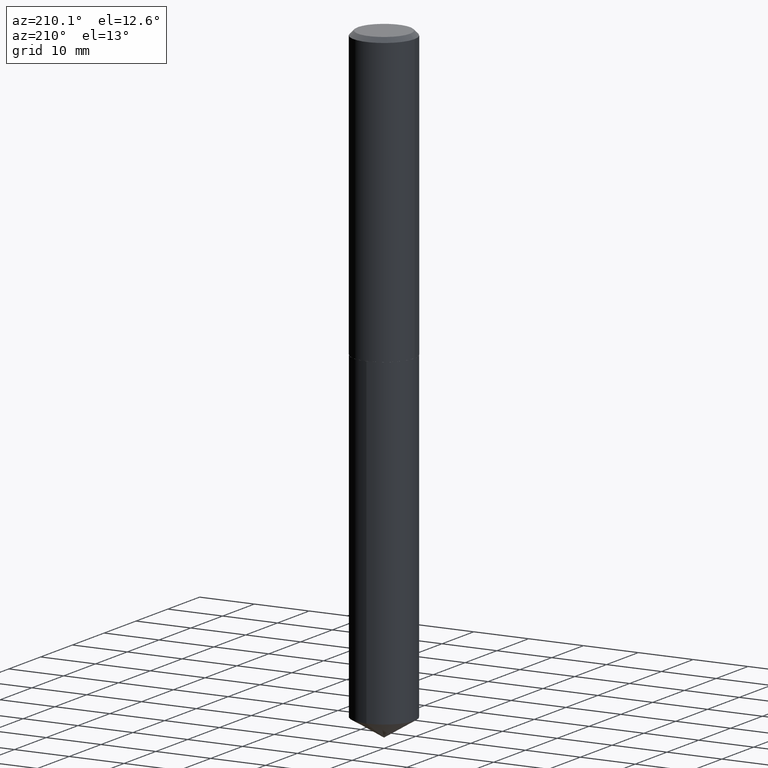
[diagram: clean part render]
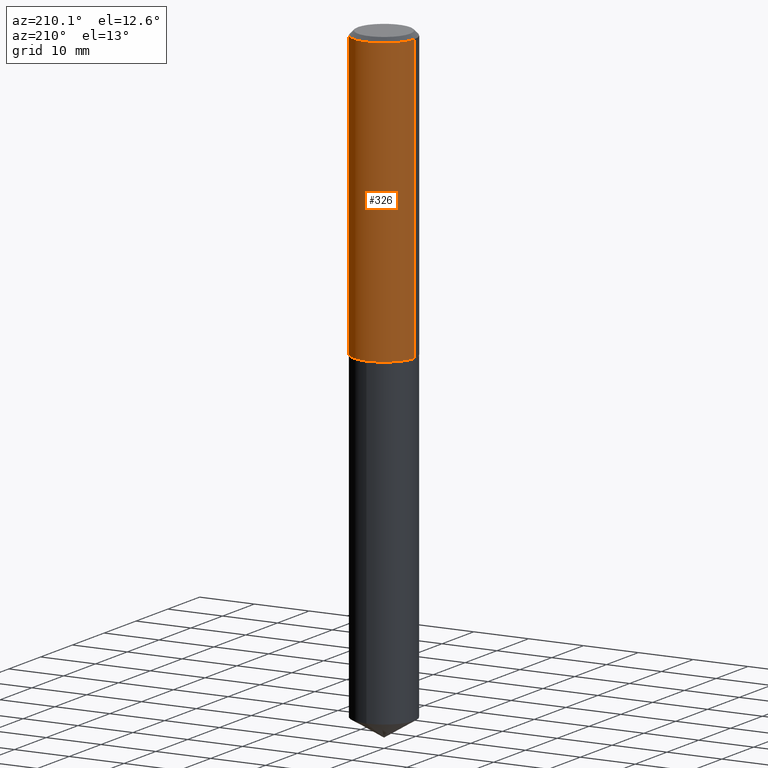
[diagram: same view with one face highlighted and labeled with its STEP entity id]
A machine part, auxiliary view. The second image highlights one B-rep face of the part: STEP entity #326.
In plain terms, the highlighted cylindrical surface (edge-blend (fillet) strip) has radius 5.5563 mm, axis along (-0, 0, 1).
Its self-contained STEP definition (entity closure, byte-faithful):
#7 = AXIS2_PLACEMENT_3D ( 'NONE', #56, #180, #362 ) ;
#8 = ORIENTED_EDGE ( 'NONE', *, *, #305, .T. ) ;
#13 = VERTEX_POINT ( 'NONE', #264 ) ;
#36 = CARTESIAN_POINT ( 'NONE',  ( 0.000000000000000000, 0.000000000000000000, 0.000000000000000000 ) ) ;
#37 = AXIS2_PLACEMENT_3D ( 'NONE', #36, #338, #374 ) ;
#51 = EDGE_CURVE ( 'NONE', #312, #13, #145, .T. ) ;
#53 = CARTESIAN_POINT ( 'NONE',  ( 7.642090019328598283E-31, -1.091087918388489651E-16, -0.03125000000000019429 ) ) ;
#56 = CARTESIAN_POINT ( 'NONE',  ( 5.042556678353752550E-29, -7.199434520694567863E-15, -2.062000000000000277 ) ) ;
#57 = CIRCLE ( 'NONE', #7, 0.2187500000000002220 ) ;
#70 = ORIENTED_EDGE ( 'NONE', *, *, #321, .F. ) ;
#116 = VECTOR ( 'NONE', #336, 39.37007874015748143 ) ;
#120 = CYLINDRICAL_SURFACE ( 'NONE', #37, 0.2187500000000000833 ) ;
#140 = EDGE_CURVE ( 'NONE', #340, #13, #348, .T. ) ;
#145 = LINE ( 'NONE', #325, #257 ) ;
#146 = DIRECTION ( 'NONE',  ( -2.445468806185136877E-29, 3.491481338843145188E-15, 1.000000000000000000 ) ) ;
#150 = CARTESIAN_POINT ( 'NONE',  ( -0.2187500000000002220, -5.645122286219346340E-15, -2.062000000000000277 ) ) ;
#168 = ORIENTED_EDGE ( 'NONE', *, *, #51, .T. ) ;
#177 = DIRECTION ( 'NONE',  ( -2.445468806185136597E-29, 3.491481338843145583E-15, 1.000000000000000000 ) ) ;
#180 = DIRECTION ( 'NONE',  ( -2.445468806185136597E-29, 3.491481338843145583E-15, 1.000000000000000000 ) ) ;
#222 = VERTEX_POINT ( 'NONE', #270 ) ;
#257 = VECTOR ( 'NONE', #146, 39.37007874015748143 ) ;
#259 = ORIENTED_EDGE ( 'NONE', *, *, #140, .F. ) ;
#264 = CARTESIAN_POINT ( 'NONE',  ( -0.2187500000000000000, -2.099959421791488142E-15, -0.03125000000000019429 ) ) ;
#270 = CARTESIAN_POINT ( 'NONE',  ( 0.2187500000000002220, -8.726957606438439495E-15, -2.062000000000000277 ) ) ;
#271 = LINE ( 'NONE', #389, #116 ) ;
#278 = CARTESIAN_POINT ( 'NONE',  ( 0.2187500000000000000, -1.636631877582719746E-15, -0.03125000000000019429 ) ) ;
#280 = EDGE_LOOP ( 'NONE', ( #8, #168, #259, #70 ) ) ;
#286 = FACE_OUTER_BOUND ( 'NONE', #280, .T. ) ;
#298 = DIRECTION ( 'NONE',  ( 1.000000000000000000, -6.982962677686266711E-15, 0.000000000000000000 ) ) ;
#305 = EDGE_CURVE ( 'NONE', #222, #312, #57, .T. ) ;
#312 = VERTEX_POINT ( 'NONE', #150 ) ;
#321 = EDGE_CURVE ( 'NONE', #222, #340, #271, .T. ) ;
#325 = CARTESIAN_POINT ( 'NONE',  ( -0.2187500000000000833, 1.554312234475219748E-15, -1.076017050993261043E-29 ) ) ;
#326 = ADVANCED_FACE ( 'NONE', ( #286 ), #120, .T. ) ;
#328 = AXIS2_PLACEMENT_3D ( 'NONE', #53, #177, #298 ) ;
#336 = DIRECTION ( 'NONE',  ( -2.445468806185136877E-29, 3.491481338843145188E-15, 1.000000000000000000 ) ) ;
#338 = DIRECTION ( 'NONE',  ( -2.445468806185136597E-29, 3.491481338843145583E-15, 1.000000000000000000 ) ) ;
#340 = VERTEX_POINT ( 'NONE', #278 ) ;
#348 = CIRCLE ( 'NONE', #328, 0.2187500000000000000 ) ;
#362 = DIRECTION ( 'NONE',  ( 1.000000000000000000, -6.982962677686265133E-15, 0.000000000000000000 ) ) ;
#374 = DIRECTION ( 'NONE',  ( 1.000000000000000000, -6.982962677686266711E-15, 4.876176775795935793E-29 ) ) ;
#389 = CARTESIAN_POINT ( 'NONE',  ( 0.2187500000000000833, -1.527523085743871435E-15, 1.066663669705361305E-29 ) ) ;